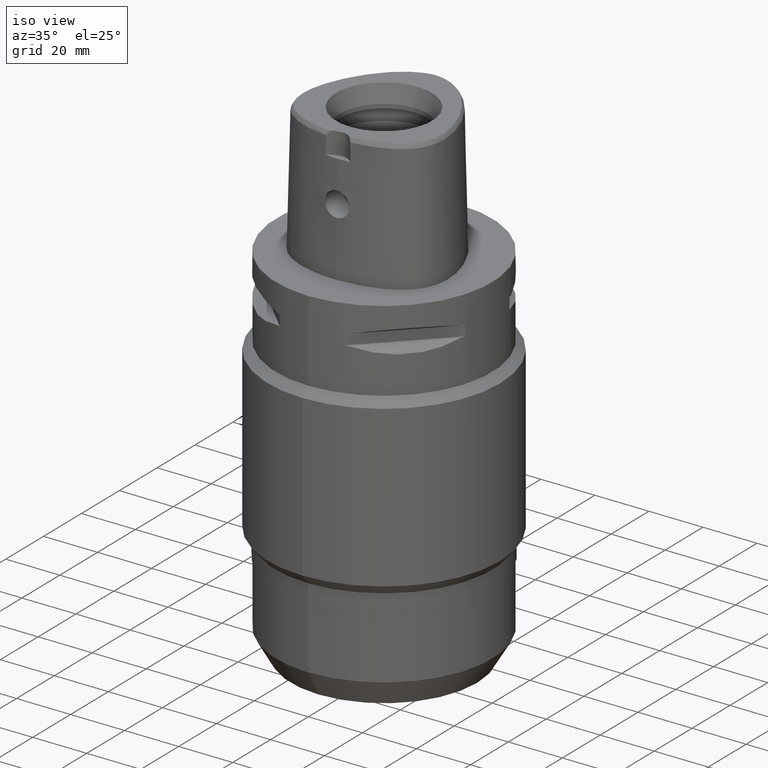
[diagram: clean part render]
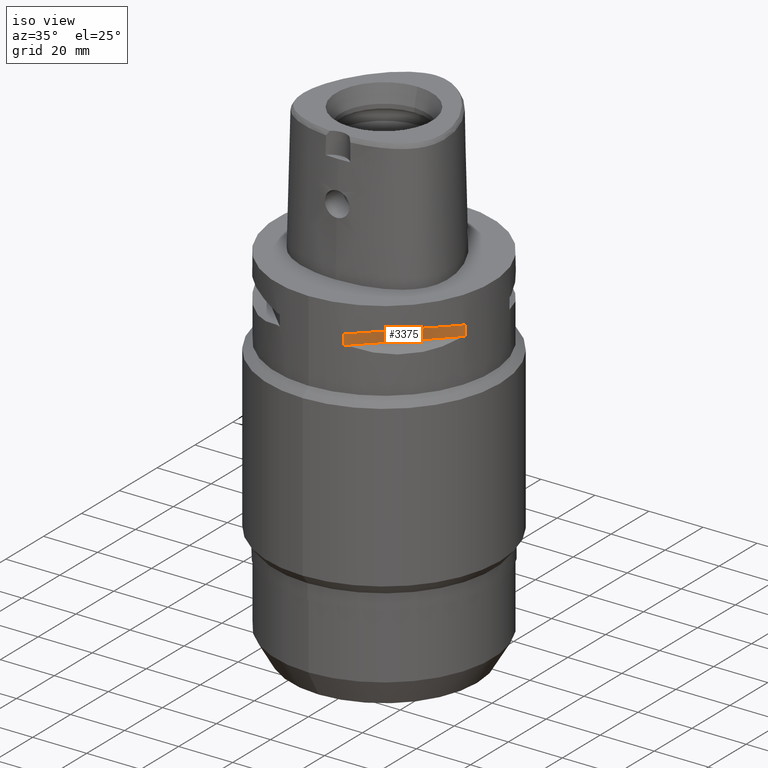
[diagram: same view with one face highlighted and labeled with its STEP entity id]
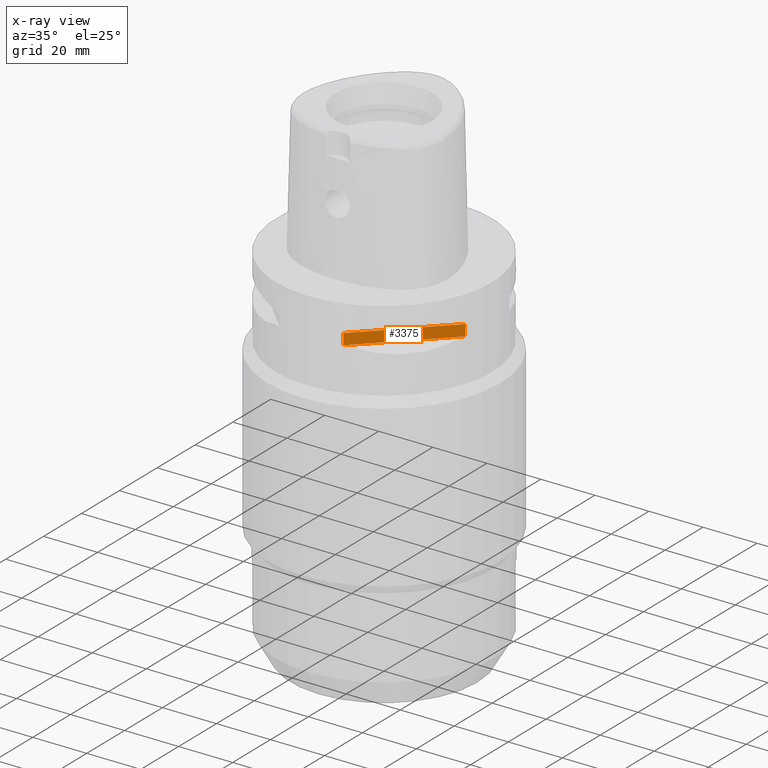
[diagram: x-ray of the same camera — body ghosted, the highlighted face saturated]
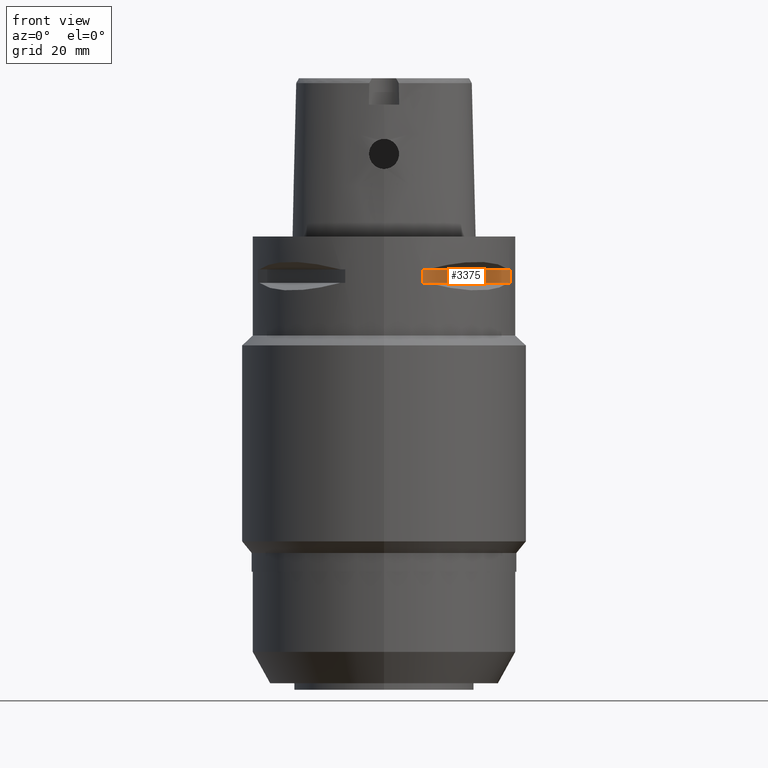
[diagram: same view with one face highlighted and labeled with its STEP entity id]
A machine part, iso view. The second image highlights one B-rep face of the part: STEP entity #3375.
The next image is the same camera in x-ray: the body ghosted, the highlighted face saturated — about 0% of this face is hidden behind the body in this view.
A second angle (front view) of the same face is appended — the face is thin or edge-on in the first view.
In plain terms, the highlighted planar face has unit normal (-0.7071, 0.7071, 0).
Its self-contained STEP definition (entity closure, byte-faithful):
#481=DIRECTION('',(0.E0,0.E0,-1.E0));
#482=VECTOR('',#481,4.1E0);
#483=CARTESIAN_POINT('',(1.176033600281E1,-3.823211342708E1,-9.95E0));
#484=LINE('',#483,#482);
#499=DIRECTION('',(0.E0,0.E0,1.E0));
#500=VECTOR('',#499,4.1E0);
#501=CARTESIAN_POINT('',(3.823211342708E1,-1.176033600281E1,-1.405E1));
#502=LINE('',#501,#500);
#1341=DIRECTION('',(7.071067811865E-1,7.071067811865E-1,0.E0));
#1342=VECTOR('',#1341,3.743674665352E1);
#1343=CARTESIAN_POINT('',(1.176033600281E1,-3.823211342708E1,-9.95E0));
#1344=LINE('',#1343,#1342);
#1364=DIRECTION('',(7.071067811865E-1,7.071067811865E-1,0.E0));
#1365=VECTOR('',#1364,3.743674665352E1);
#1366=CARTESIAN_POINT('',(1.176033600281E1,-3.823211342708E1,-1.405E1));
#1367=LINE('',#1366,#1365);
#1616=CARTESIAN_POINT('',(1.176033600281E1,-3.823211342708E1,-9.95E0));
#1617=VERTEX_POINT('',#1616);
#1618=CARTESIAN_POINT('',(1.176033600281E1,-3.823211342708E1,-1.405E1));
#1619=VERTEX_POINT('',#1618);
#1623=CARTESIAN_POINT('',(3.823211342708E1,-1.176033600281E1,-1.405E1));
#1624=VERTEX_POINT('',#1623);
#1625=CARTESIAN_POINT('',(3.823211342708E1,-1.176033600281E1,-9.95E0));
#1626=VERTEX_POINT('',#1625);
#3363=CARTESIAN_POINT('',(4.267389424461E1,-7.318555185281E0,-9.95E0));
#3364=DIRECTION('',(-7.071067811865E-1,7.071067811865E-1,0.E0));
#3365=DIRECTION('',(0.E0,0.E0,-1.E0));
#3366=AXIS2_PLACEMENT_3D('',#3363,#3364,#3365);
#3367=PLANE('',#3366);
#3368=ORIENTED_EDGE('',*,*,#2561,.F.);
#3370=ORIENTED_EDGE('',*,*,#3369,.F.);
#3371=ORIENTED_EDGE('',*,*,#2553,.F.);
#3372=ORIENTED_EDGE('',*,*,#3356,.T.);
#3373=EDGE_LOOP('',(#3368,#3370,#3371,#3372));
#3374=FACE_OUTER_BOUND('',#3373,.F.);
#2553=EDGE_CURVE('',#1617,#1619,#484,.T.);
#2561=EDGE_CURVE('',#1624,#1626,#502,.T.);
#3356=EDGE_CURVE('',#1617,#1626,#1344,.T.);
#3369=EDGE_CURVE('',#1619,#1624,#1367,.T.);
#3375=ADVANCED_FACE('',(#3374),#3367,.F.);